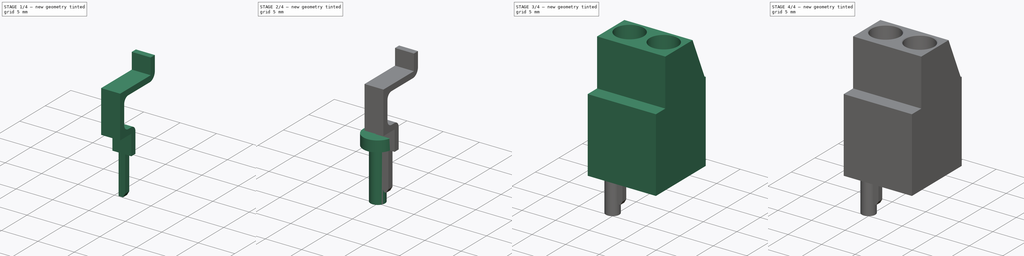
[diagram: build sequence overview — one tinted view per stage of 4, left to right]
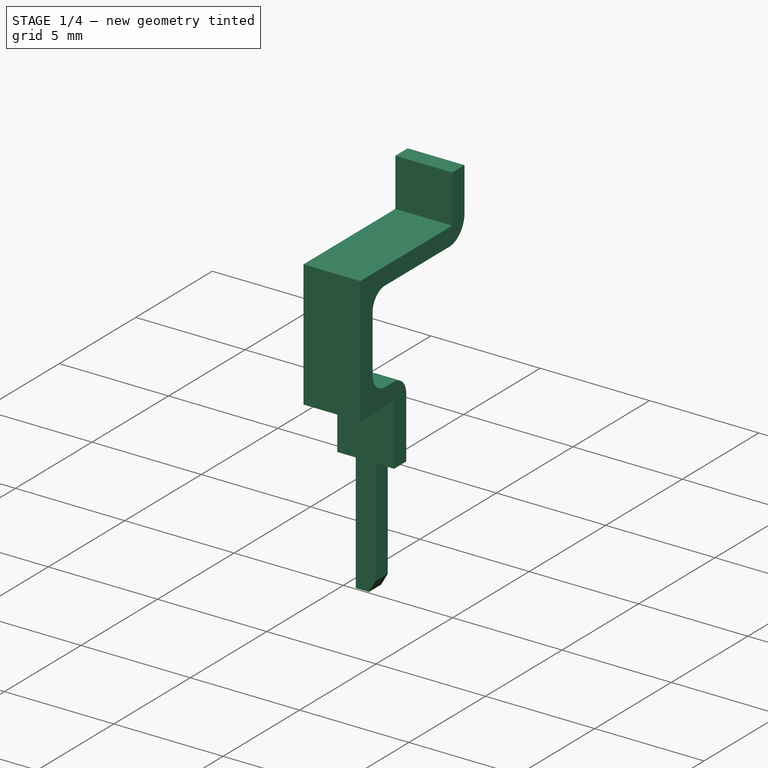
[diagram: stage 1 of 4 — iso view after this stage's code; geometry added in this stage tinted green]
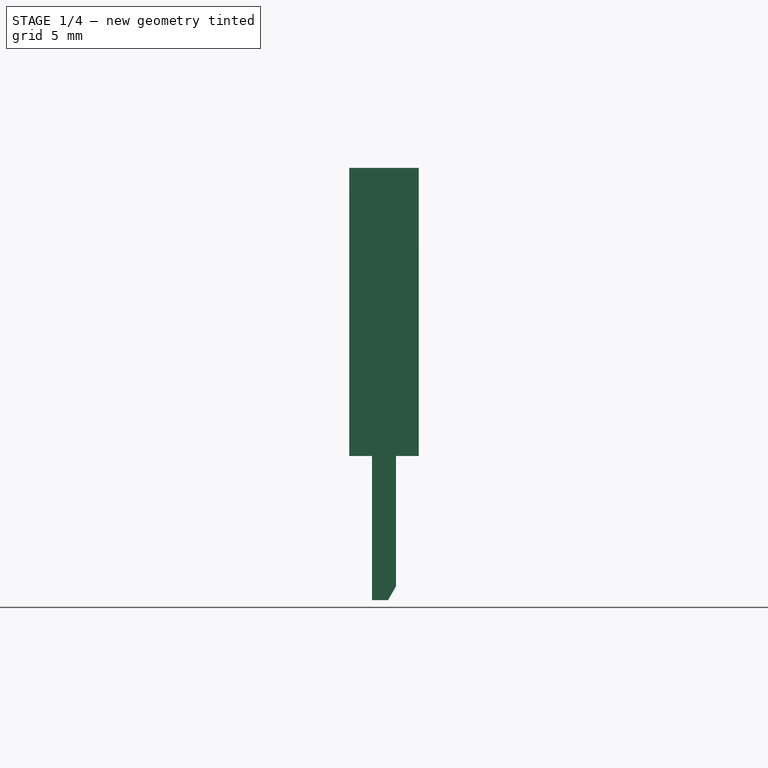
[diagram: stage 1 of 4 — front view after this stage's code; geometry added in this stage tinted green]
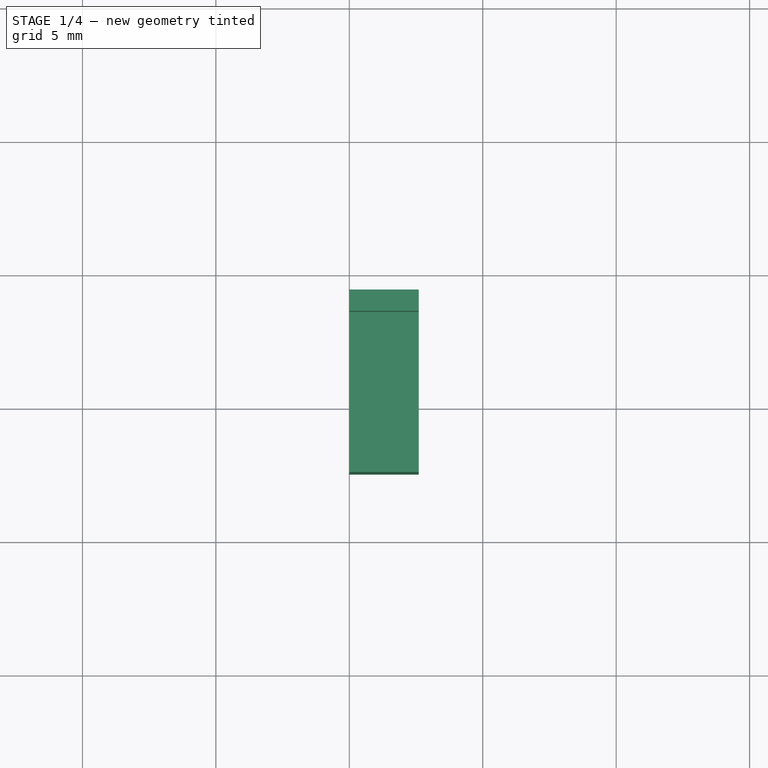
[diagram: stage 1 of 4 — top view after this stage's code; geometry added in this stage tinted green]
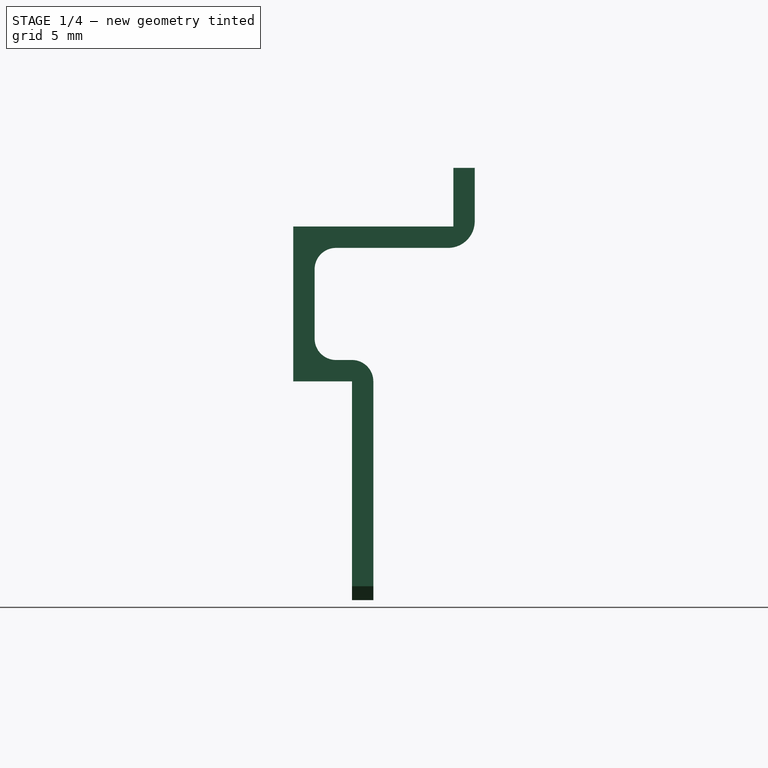
[diagram: stage 1 of 4 — right view after this stage's code; geometry added in this stage tinted green]
FCSTD DOCUMENT  (FreeCAD 0.19R21125 (Git))
Label: RND_TERMINAL_BLOCK_205-00287
License: All rights reserved
LicenseURL: http://en.wikipedia.org/wiki/All_rights_reserved
objects: Sketcher::SketchObject×8, PartDesign::Pad×4, PartDesign::Pocket×4, PartDesign::Chamfer×4, PartDesign::Body×3, App::Link×2, PartDesign::Fillet×1
note: 37 computed .brp shape members not serialized (recipe doc carries the construction recipe); baked Part::Feature solids carry a one-line shape summary decoded from their .brp

FEATURE [PartDesign::Body] Body001  label="Screw"
  Group = -> [Sketch003,Pad001,Sketch004,Pad002,Sketch005,Fillet,Pocket002]
  Origin = -> Origin001
  Placement = pos=(2.54,0,16) rot=(0,0,1;0.610865rad)
  Tip = -> Pocket002
FEATURE [App::Link] Link  label="Screw001"
  LinkPlacement = pos=(7.62,0,16) rot=(0,0,1;0.610865rad)
  LinkedObject = -> Body001
  Placement = pos=(7.62,0,16) rot=(0,0,1;0.610865rad)
FEATURE [Sketcher::SketchObject] Sketch006
  MapMode = 5
  Placement = pos=(0,0,0) rot=(0.57735,0.57735,0.57735;2.0944rad)
  Support = -> [YZ_Plane002]
  sketch-geometry (16):
    g0: LineSegment StartX=-0.4 StartY=-5.4 StartZ=0 EndX=-0.4 EndY=2.8 EndZ=0
    g1: LineSegment StartX=-0.4 StartY=2.8 StartZ=0 EndX=-2.6 EndY=2.8 EndZ=0
    g2: LineSegment StartX=-2.6 StartY=2.8 StartZ=0 EndX=-2.6 EndY=8.6 EndZ=0
    g3: LineSegment StartX=-2.6 StartY=8.6 StartZ=0 EndX=3.4 EndY=8.6 EndZ=0
    g4: LineSegment StartX=3.4 StartY=8.6 StartZ=0 EndX=3.4 EndY=10.8 EndZ=0
    g5: LineSegment StartX=3.4 StartY=10.8 StartZ=0 EndX=4.2 EndY=10.8 EndZ=0
    g6: LineSegment StartX=4.2 StartY=10.8 StartZ=0 EndX=4.2 EndY=8.8 EndZ=0
    g7: LineSegment StartX=3.2 StartY=7.8 StartZ=0 EndX=-1 EndY=7.8 EndZ=0
    g8: LineSegment StartX=-1.8 StartY=7 StartZ=0 EndX=-1.8 EndY=4.4 EndZ=0
    g9: LineSegment StartX=-1 StartY=3.6 StartZ=0 EndX=-0.4 EndY=3.6 EndZ=0
    g10: LineSegment StartX=0.4 StartY=2.8 StartZ=0 EndX=0.4 EndY=-5.4 EndZ=0
    g11: LineSegment StartX=0.4 StartY=-5.4 StartZ=0 EndX=-0.4 EndY=-5.4 EndZ=0
    g12: ArcOfCircle CenterX=3.2 CenterY=8.8 CenterZ=0 NormalX=0 NormalY=0 NormalZ=1 AngleXU=0 Radius=1 StartAngle=4.71239 EndAngle=6.28319
    g13: ArcOfCircle CenterX=-0.4 CenterY=2.8 CenterZ=0 NormalX=0 NormalY=0 NormalZ=1 AngleXU=0 Radius=0.8 StartAngle=0 EndAngle=1.5708
    g14: ArcOfCircle CenterX=-1 CenterY=7 CenterZ=0 NormalX=0 NormalY=0 NormalZ=1 AngleXU=0 Radius=0.8 StartAngle=1.5708 EndAngle=3.14159
    g15: ArcOfCircle CenterX=-1 CenterY=4.4 CenterZ=0 NormalX=0 NormalY=0 NormalZ=1 AngleXU=0 Radius=0.8 StartAngle=3.14159 EndAngle=4.71239
  constraints (43):
    c: Vertical(g0)
    c: Coincident(g0,g1)
    c: Horizontal(g1)
    c: Coincident(g1,g2)
    c: Vertical(g2)
    c: Coincident(g2,g3)
    c: Horizontal(g3)
    c: Coincident(g3,g4)
    c: Vertical(g4)
    c: Coincident(g4,g5)
    c: Horizontal(g5)
    c: Coincident(g5,g6)
    c: Vertical(g6)
    c: Horizontal(g7)
    c: Vertical(g8)
    c: Horizontal(g9)
    c: Vertical(g10)
    c: Coincident(g10,g11)
    c: Coincident(g0,g11)
    c: DistanceX(g11,g11) = 0.8
    c: DistanceX(g5,g5) = 0.8
    c: DistanceX(g3,g3) = 6
    c: DistanceY(g10,g-1) = 5.4
    c: Symmetric(g0,g10,g-2)
    c: Tangent(g6,g12) = 1.5708
    c: Tangent(g7,g12) = 1.5708
    c: Radius(g12) = 1
    c: Tangent(g9,g13) = 1.5708
    c: Tangent(g10,g13) = 1.5708
    c: Tangent(g7,g14) = -1.5708
    c: Tangent(g8,g14) = -1.5708
    c: Tangent(g8,g15) = -1.5708
    c: Tangent(g9,g15) = -1.5708
    c: Radius(g14) = 0.8
    c: Radius(g15) = 0.8
    c: DistanceY(g0,g9) = 0.8
    c: DistanceY(g7,g3) = 0.8
    c: DistanceX(g2,g8) = 0.8
    c: Radius(g13) = 0.8
    c: DistanceY(g10,g9) = 9
    c: DistanceX(g1,g10) = 3
    c: DistanceY(g1,g2) = 5.8
    c: DistanceY(g7,g5) = 3
FEATURE [PartDesign::Pad] Pad003
  Length = 2.6
  Length2 = 100
  Placement = pos=(0,0,0) rot=(0.57735,0.57735,0.57735;2.0944rad)
  Profile = -> Sketch006
  Type = 0
FEATURE [Sketcher::SketchObject] Sketch007
  MapMode = 5
  Placement = pos=(2e-16,0.4,-1e-16) rot=(0.57735,0.57735,0.57735;4.18879rad)
  Support = -> [Pad003]
  sketch-geometry (8):
    g0: LineSegment StartX=-6 StartY=2.75 StartZ=0 EndX=0 EndY=2.75 EndZ=0
    g1: LineSegment StartX=0 StartY=2.75 StartZ=0 EndX=0 EndY=1.75 EndZ=0
    g2: LineSegment StartX=0 StartY=1.75 StartZ=0 EndX=-6 EndY=1.75 EndZ=0
    g3: LineSegment StartX=-6 StartY=1.75 StartZ=0 EndX=-6 EndY=2.75 EndZ=0
    g4: LineSegment StartX=-6 StartY=0.85 StartZ=0 EndX=0 EndY=0.85 EndZ=0
    g5: LineSegment StartX=0 StartY=0.85 StartZ=0 EndX=0 EndY=-0.15 EndZ=0
    g6: LineSegment StartX=0 StartY=-0.15 StartZ=0 EndX=-6 EndY=-0.15 EndZ=0
    g7: LineSegment StartX=-6 StartY=-0.15 StartZ=0 EndX=-6 EndY=0.85 EndZ=0
  constraints (24):
    c: Coincident(g0,g1)
    c: Coincident(g1,g2)
    c: Coincident(g2,g3)
    c: Coincident(g3,g0)
    c: Horizontal(g0)
    c: Horizontal(g2)
    c: Vertical(g1)
    c: Vertical(g3)
    c: PointOnObject(g1,g-2)
    c: Coincident(g4,g5)
    c: Coincident(g5,g6)
    c: Coincident(g6,g7)
    c: Coincident(g7,g4)
    c: Horizontal(g4)
    c: Horizontal(g6)
    c: Vertical(g5)
    c: Vertical(g7)
    c: PointOnObject(g5,g-2)
    c: DistanceY(g-1,g4) = 0.85
    c: DistanceY(g4,g1) = 0.9
    c: DistanceY(g1,g1) = 1
    c: DistanceY(g5,g5) = 1
    c: DistanceX(g0,g0) = 6
    c: DistanceX(g6,g6) = 6
FEATURE [PartDesign::Pocket] Pocket003
  BaseFeature = -> Pad003
  Length = 5
  Length2 = 100
  Placement = pos=(0,0,0) rot=(0.57735,0.57735,0.57735;2.0944rad)
  Profile = -> Sketch007
  Type = 0
FEATURE [PartDesign::Chamfer] Chamfer002
  Angle = 60
  Base = -> Pocket003 [Edge29]
  BaseFeature = -> Pocket003
  Placement = pos=(0,0,0) rot=(0.57735,0.57735,0.57735;2.0944rad)
  Size = 0.3
  SupportTransform = true
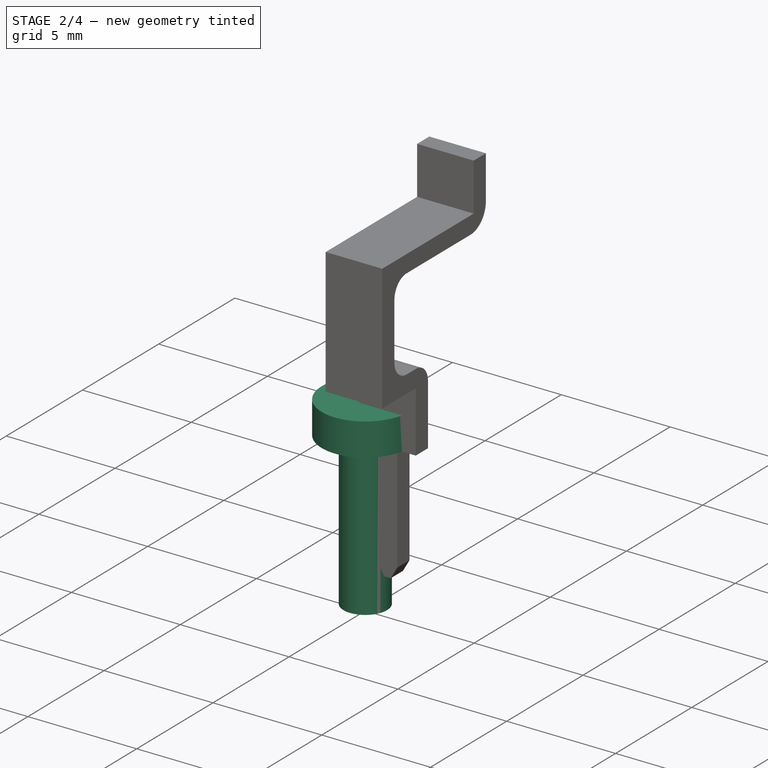
[diagram: stage 2 of 4 — iso view after this stage's code; geometry added in this stage tinted green]
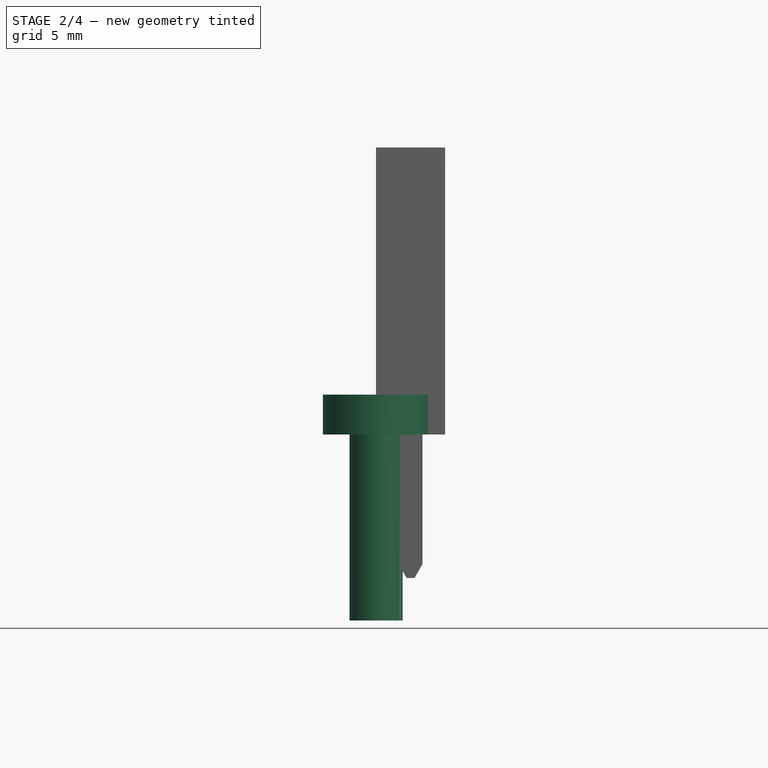
[diagram: stage 2 of 4 — front view after this stage's code; geometry added in this stage tinted green]
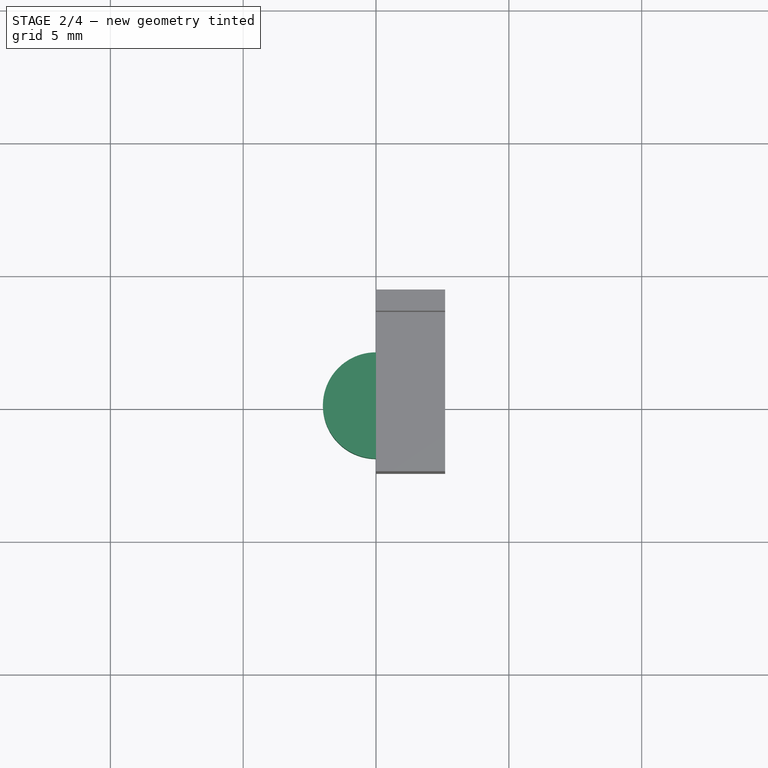
[diagram: stage 2 of 4 — top view after this stage's code; geometry added in this stage tinted green]
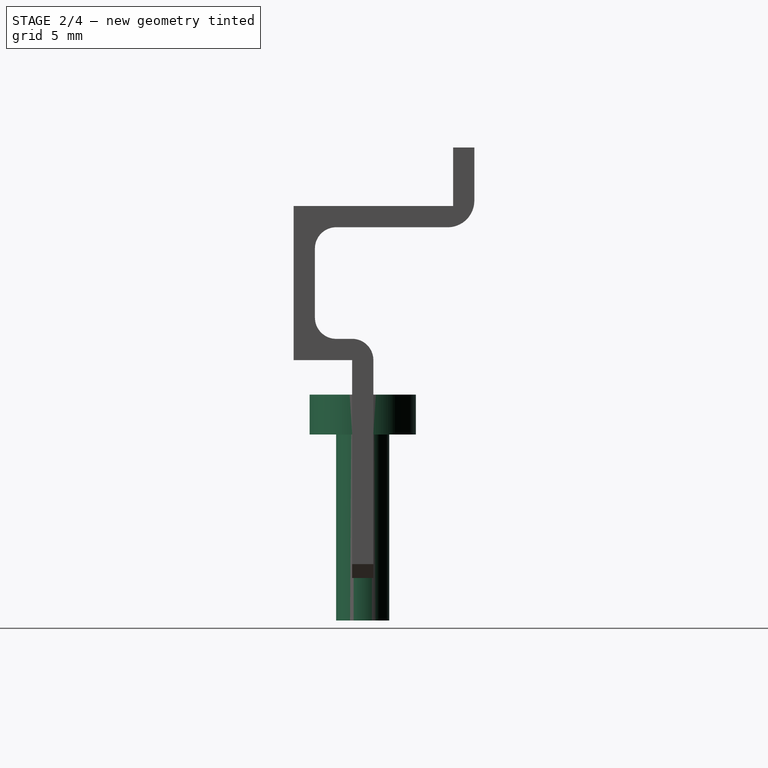
[diagram: stage 2 of 4 — right view after this stage's code; geometry added in this stage tinted green]
FEATURE [PartDesign::Body] Body  label="Gehaeuse"
  Group = -> [Sketch,Pad,Sketch001,Pocket,Sketch002,Pocket001,Chamfer,Chamfer001]
  Origin = -> Origin
  Tip = -> Chamfer001
FEATURE [Sketcher::SketchObject] Sketch003
  MapMode = 5
  Support = -> [XY_Plane001]
  sketch-geometry (1):
    g0: Circle CenterX=0 CenterY=0 CenterZ=0 NormalX=0 NormalY=0 NormalZ=1 AngleXU=0 Radius=2
  constraints (2):
    c: Diameter(g0) = 4
    c: Coincident(g-1,g0)
FEATURE [PartDesign::Pad] Pad001
  Length = 1.5
  Length2 = 100
  Profile = -> Sketch003
  Type = 0
FEATURE [Sketcher::SketchObject] Sketch004
  MapMode = 5
  Placement = pos=(0,0,0) rot=(1,0,0;3.14159rad)
  Support = -> [Pad001]
  sketch-geometry (1):
    g0: Circle CenterX=0 CenterY=0 CenterZ=0 NormalX=0 NormalY=0 NormalZ=1 AngleXU=0 Radius=1
  constraints (2):
    c: Coincident(g0,g-1)
    c: Diameter(g0) = 2
FEATURE [PartDesign::Pad] Pad002
  BaseFeature = -> Pad001
  Length = 7
  Length2 = 100
  Profile = -> Sketch004
  Type = 0
FEATURE [PartDesign::Chamfer] Chamfer003
  Angle = 60
  Base = -> Chamfer002 [Edge12]
  BaseFeature = -> Chamfer002
  Placement = pos=(0,0,0) rot=(0.57735,0.57735,0.57735;2.0944rad)
  Size = 0.3
  SupportTransform = true
FEATURE [PartDesign::Body] Body002  label="Pin"
  Group = -> [Sketch006,Pad003,Sketch007,Pocket003,Chamfer002,Chamfer003]
  Origin = -> Origin002
  Placement = pos=(1.24,0,0) rot=(0,0,1;0rad)
  Tip = -> Chamfer003
FEATURE [App::Link] Link001  label="Pin001"
  LinkPlacement = pos=(6.32,0,0) rot=(0,0,1;0rad)
  LinkedObject = -> Body002
  Placement = pos=(6.32,0,0) rot=(0,0,1;0rad)
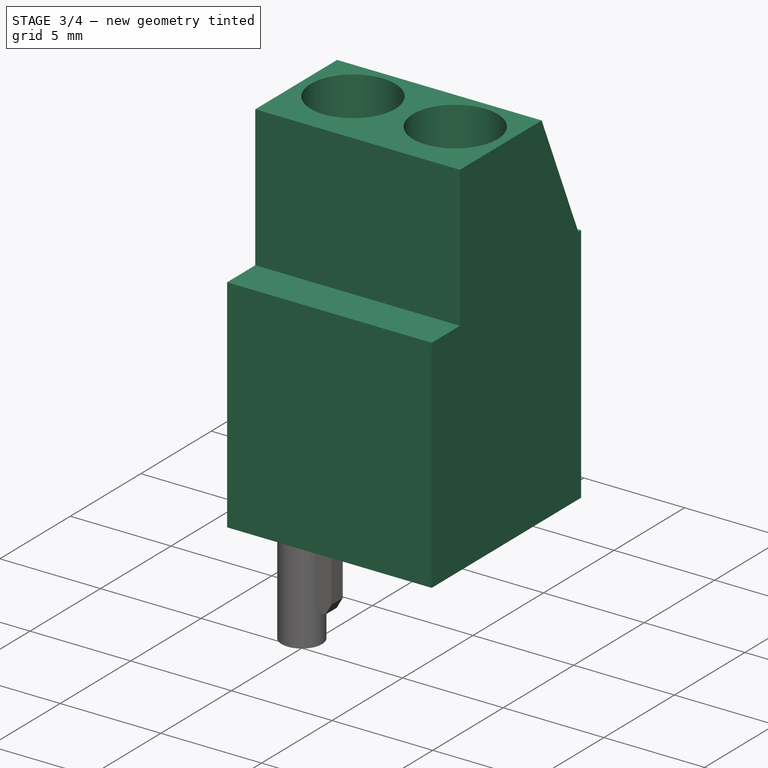
[diagram: stage 3 of 4 — iso view after this stage's code; geometry added in this stage tinted green]
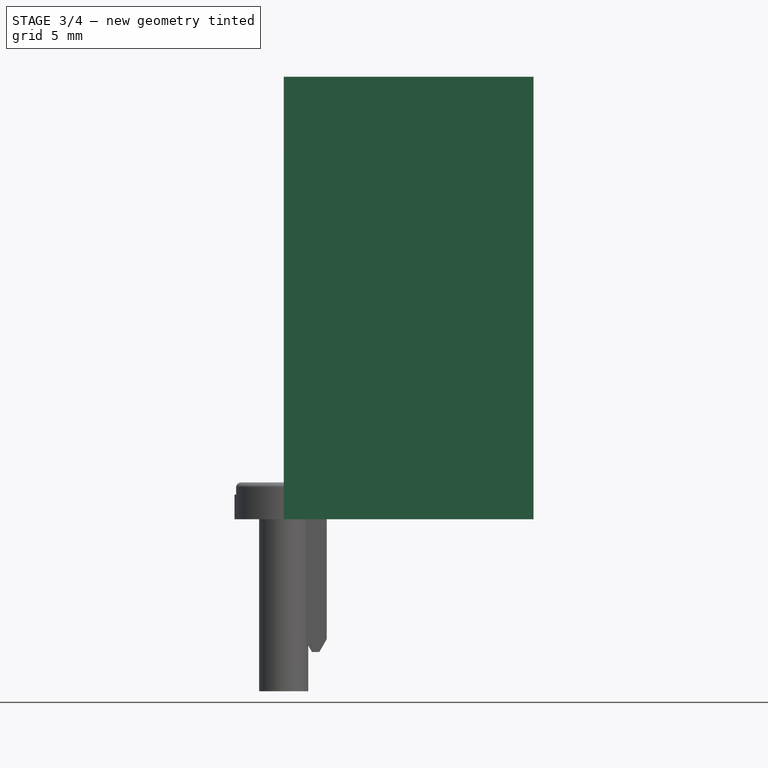
[diagram: stage 3 of 4 — front view after this stage's code; geometry added in this stage tinted green]
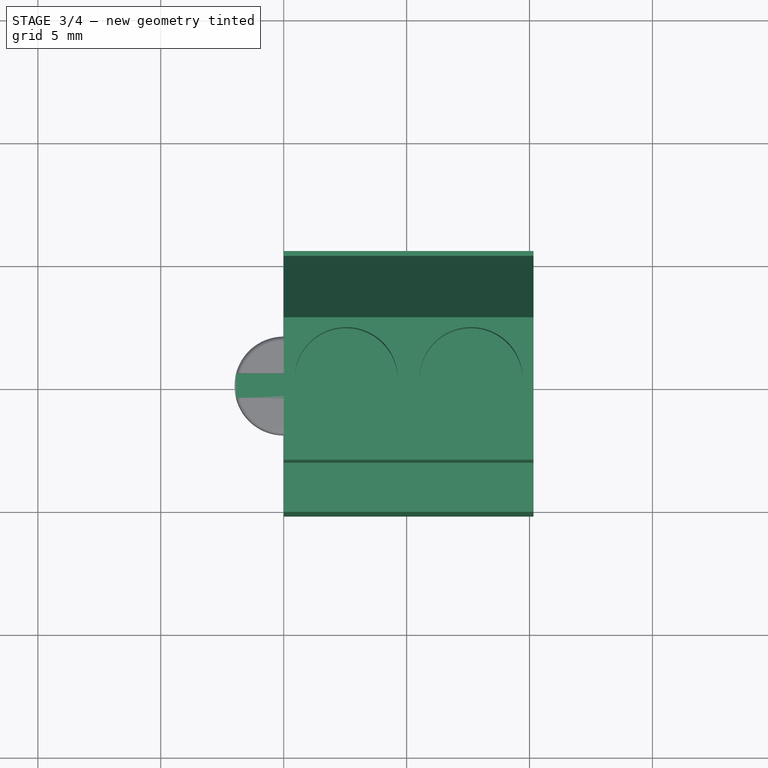
[diagram: stage 3 of 4 — top view after this stage's code; geometry added in this stage tinted green]
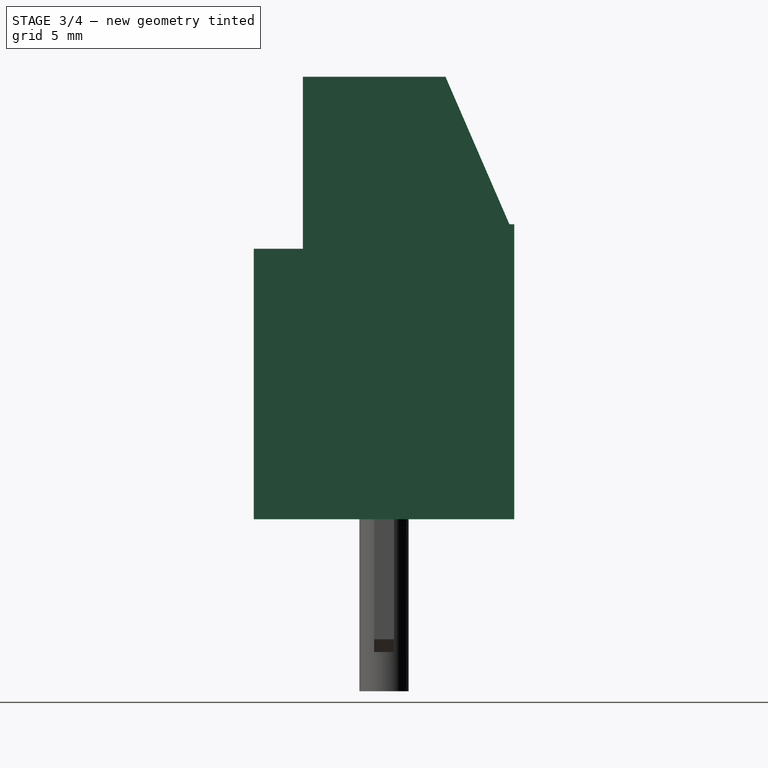
[diagram: stage 3 of 4 — right view after this stage's code; geometry added in this stage tinted green]
FEATURE [Sketcher::SketchObject] Sketch
  MapMode = 5
  Placement = pos=(0,0,0) rot=(0.57735,0.57735,0.57735;2.0944rad)
  Support = -> [YZ_Plane]
  sketch-geometry (8):
    g0: LineSegment StartX=-5.3 StartY=0 StartZ=0 EndX=5.3 EndY=0 EndZ=0
    g1: LineSegment StartX=5.3 StartY=0 StartZ=0 EndX=5.3 EndY=12 EndZ=0
    g2: LineSegment StartX=5.3 StartY=12 StartZ=0 EndX=5.1 EndY=12 EndZ=0
    g3: LineSegment StartX=5.1 StartY=12 StartZ=0 EndX=2.5 EndY=18 EndZ=0
    g4: LineSegment StartX=2.5 StartY=18 StartZ=0 EndX=-3.3 EndY=18 EndZ=0
    g5: LineSegment StartX=-3.3 StartY=18 StartZ=0 EndX=-3.3 EndY=11 EndZ=0
    g6: LineSegment StartX=-3.3 StartY=11 StartZ=0 EndX=-5.3 EndY=11 EndZ=0
    g7: LineSegment StartX=-5.3 StartY=11 StartZ=0 EndX=-5.3 EndY=0 EndZ=0
  constraints (23):
    c: Coincident(g0,g1)
    c: Vertical(g1)
    c: Coincident(g1,g2)
    c: Horizontal(g2)
    c: Coincident(g2,g3)
    c: Horizontal(g4)
    c: Coincident(g4,g5)
    c: Vertical(g5)
    c: Coincident(g5,g6)
    c: Horizontal(g6)
    c: Coincident(g6,g7)
    c: Vertical(g7)
    c: Coincident(g0,g7)
    c: DistanceX(g0,g0) = 10.6
    c: DistanceY(g0,g4) = 18
    c: Coincident(g3,g4)
    c: DistanceX(g6,g6) = 2
    c: DistanceY(g1,g1) = 12
    c: DistanceX(g2,g2) = 0.2
    c: Symmetric(g0,g0,g-2)
    c: DistanceX(g6,g3) = 7.8
    c: PointOnObject(g-1,g0)
    c: DistanceY(g7,g7) = 11
FEATURE [PartDesign::Pad] Pad
  Length = 10.16
  Length2 = 100
  Placement = pos=(0,0,0) rot=(0.57735,0.57735,0.57735;2.0944rad)
  Profile = -> Sketch
  Type = 0
FEATURE [Sketcher::SketchObject] Sketch001
  MapMode = 5
  Placement = pos=(-7e-15,1e-14,18) rot=(0,0,-1;1.5708rad)
  Support = -> [Pad]
  sketch-geometry (2):
    g0: Circle CenterX=0 CenterY=2.54 CenterZ=0 NormalX=0 NormalY=0 NormalZ=1 AngleXU=0 Radius=2.1
    g1: Circle CenterX=0 CenterY=7.62 CenterZ=0 NormalX=0 NormalY=0 NormalZ=1 AngleXU=0 Radius=2.1
  constraints (6):
    c: Diameter(g0) = 4.2
    c: Diameter(g1) = 4.2
    c: PointOnObject(g1,g-2)
    c: PointOnObject(g0,g-2)
    c: DistanceY(g0,g1) = 5.08
    c: DistanceY(g-1,g0) = 2.54
FEATURE [PartDesign::Pocket] Pocket
  BaseFeature = -> Pad
  Length = 3
  Length2 = 100
  Placement = pos=(0,0,0) rot=(0.57735,0.57735,0.57735;2.0944rad)
  Profile = -> Sketch001
  Type = 0
FEATURE [Sketcher::SketchObject] Sketch005
  MapMode = 5
  Placement = pos=(0,0,1.5) rot=(0,0,1;0rad)
  Support = -> [Pad002]
  sketch-geometry (4):
    g0: LineSegment StartX=-2.25 StartY=0.5 StartZ=0 EndX=2.25 EndY=0.5 EndZ=0
    g1: LineSegment StartX=2.25 StartY=0.5 StartZ=0 EndX=2.25 EndY=-0.5 EndZ=0
    g2: LineSegment StartX=2.25 StartY=-0.5 StartZ=0 EndX=-2.25 EndY=-0.5 EndZ=0
    g3: LineSegment StartX=-2.25 StartY=-0.5 StartZ=0 EndX=-2.25 EndY=0.5 EndZ=0
  constraints (10):
    c: Coincident(g0,g1)
    c: Coincident(g1,g2)
    c: Coincident(g2,g3)
    c: Coincident(g3,g0)
    c: Horizontal(g2)
    c: Vertical(g3)
    c: Symmetric(g0,g1,g-1)
    c: DistanceX(g0,g0) = 4.5
    c: DistanceY(g1,g1) = 1
    c: Symmetric(g0,g0,g-2)
FEATURE [PartDesign::Fillet] Fillet
  Base = -> Pad002 [Face3]
  BaseFeature = -> Pad002
  Radius = 0.2
  SupportTransform = true
FEATURE [PartDesign::Pocket] Pocket002
  BaseFeature = -> Fillet
  Length = 0.5
  Length2 = 100
  Profile = -> Sketch005
  Type = 0
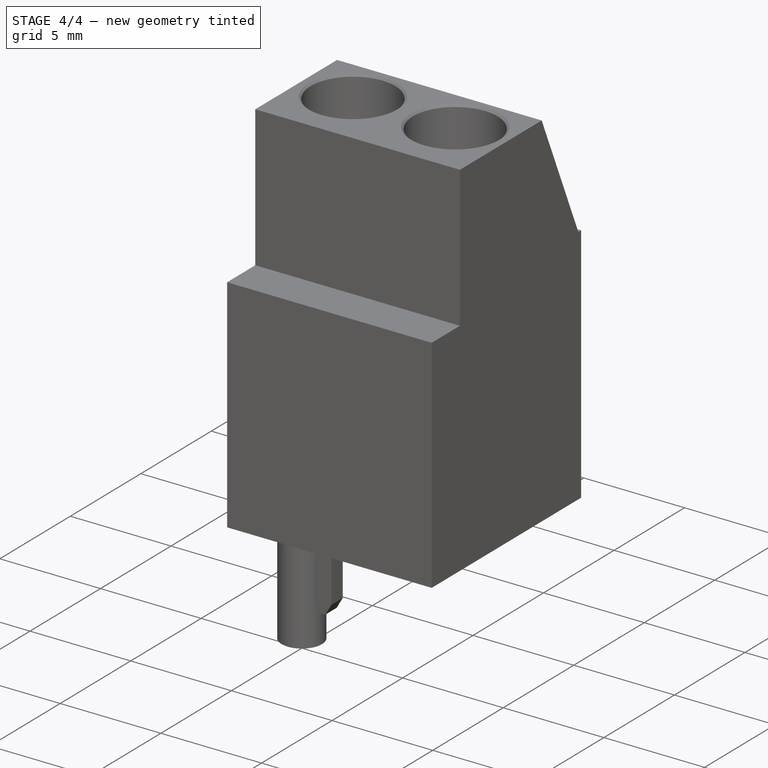
[diagram: stage 4 of 4 — iso view after this stage's code; geometry added in this stage tinted green]
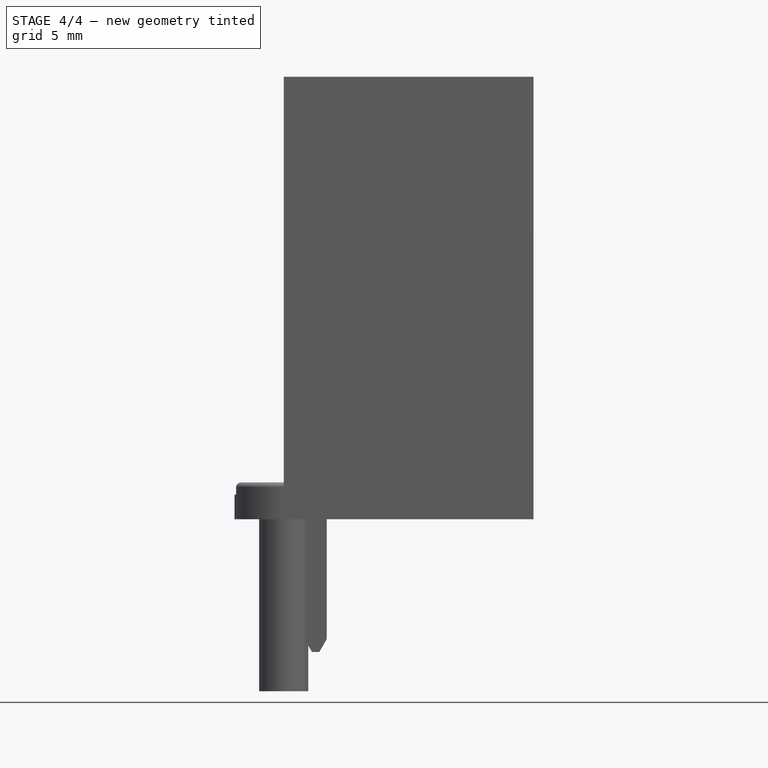
[diagram: stage 4 of 4 — front view after this stage's code; geometry added in this stage tinted green]
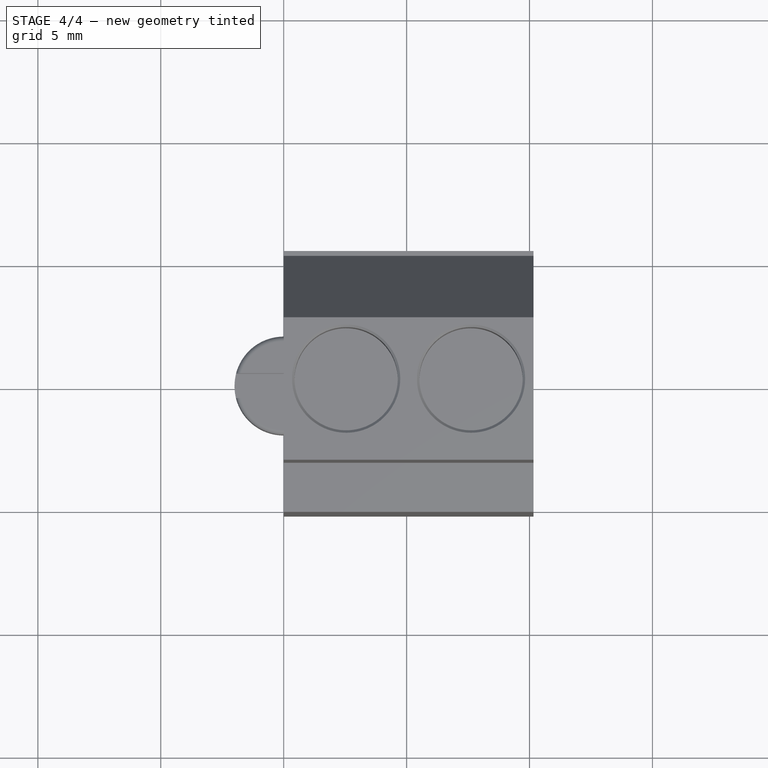
[diagram: stage 4 of 4 — top view after this stage's code; geometry added in this stage tinted green]
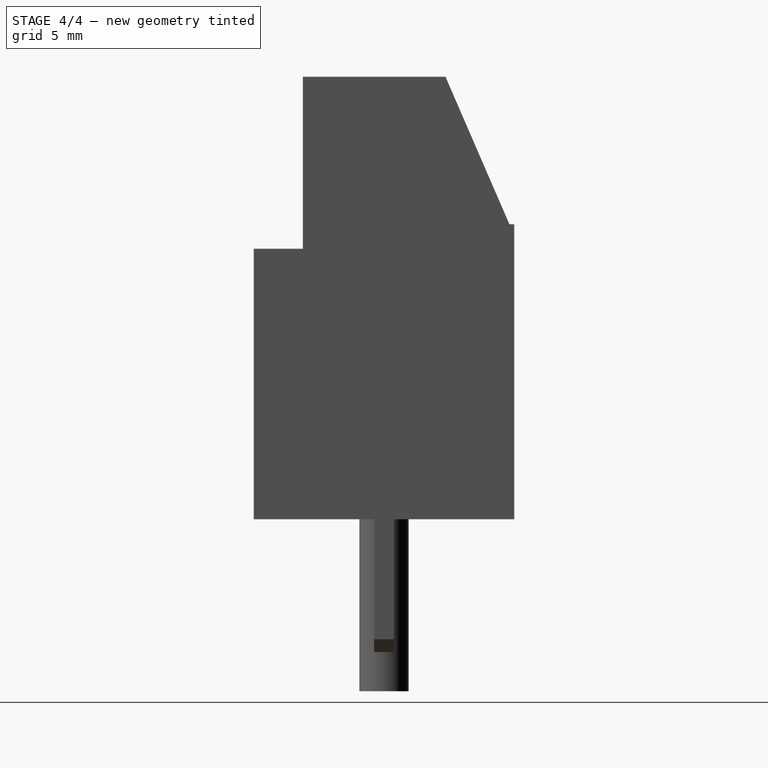
[diagram: stage 4 of 4 — right view after this stage's code; geometry added in this stage tinted green]
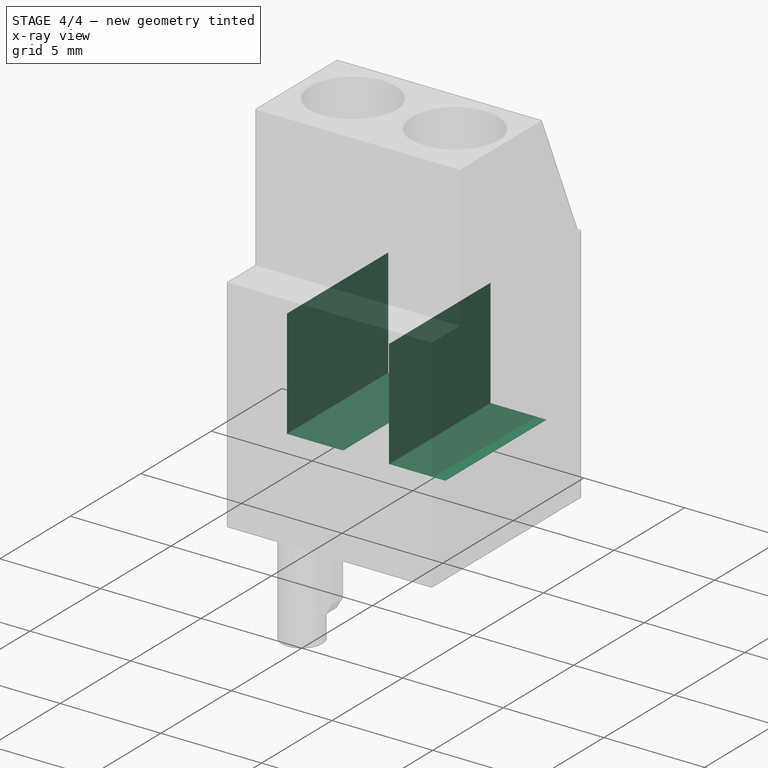
[diagram: stage 4 of 4 — x-ray composite at the iso view; earlier geometry ghosted, this stage's added geometry solid]
FEATURE [Sketcher::SketchObject] Sketch002
  MapMode = 5
  Placement = pos=(2.4e-15,5.3,-3.5e-15) rot=(0.57735,0.57735,0.57735;4.18879rad)
  Support = -> [Pocket]
  sketch-geometry (8):
    g0: LineSegment StartX=8.9 StartY=9.02 StartZ=0 EndX=3.5 EndY=9.02 EndZ=0
    g1: LineSegment StartX=3.5 StartY=9.02 StartZ=0 EndX=3.5 EndY=6.22 EndZ=0
    g2: LineSegment StartX=3.5 StartY=6.22 StartZ=0 EndX=8.9 EndY=6.22 EndZ=0
    g3: LineSegment StartX=8.9 StartY=6.22 StartZ=0 EndX=8.9 EndY=9.02 EndZ=0
    g4: LineSegment StartX=8.9 StartY=3.94 StartZ=0 EndX=3.5 EndY=3.94 EndZ=0
    g5: LineSegment StartX=3.5 StartY=3.94 StartZ=0 EndX=3.5 EndY=1.14 EndZ=0
    g6: LineSegment StartX=3.5 StartY=1.14 StartZ=0 EndX=8.9 EndY=1.14 EndZ=0
    g7: LineSegment StartX=8.9 StartY=1.14 StartZ=0 EndX=8.9 EndY=3.94 EndZ=0
  constraints (24):
    c: Coincident(g0,g1)
    c: Coincident(g1,g2)
    c: Coincident(g2,g3)
    c: Coincident(g3,g0)
    c: Horizontal(g0)
    c: Horizontal(g2)
    c: Vertical(g1)
    c: Vertical(g3)
    c: Coincident(g4,g5)
    c: Coincident(g5,g6)
    c: Coincident(g6,g7)
    c: Coincident(g7,g4)
    c: Horizontal(g4)
    c: Horizontal(g6)
    c: Vertical(g5)
    c: Vertical(g7)
    c: Equal(g3,g7)
    c: Equal(g6,g2)
    c: DistanceY(g3,g3) = 2.8
    c: DistanceX(g0,g0) = 5.4
    c: PointOnObject(g2,g7)
    c: DistanceY(g6,g2) = 5.08
    c: DistanceX(g-1,g5) = 3.5
    c: DistanceY(g-1,g5) = 1.14
FEATURE [PartDesign::Pocket] Pocket001
  BaseFeature = -> Pocket
  Length = 8
  Length2 = 100
  Placement = pos=(0,0,0) rot=(0.57735,0.57735,0.57735;2.0944rad)
  Profile = -> Sketch002
  Type = 0
FEATURE [PartDesign::Chamfer] Chamfer
  Angle = 45
  Base = -> Pocket001 [Edge12,Edge11,Edge14,Edge13,Edge18,Edge15,Edge16,Edge17]
  BaseFeature = -> Pocket001
  Placement = pos=(0,0,0) rot=(0.57735,0.57735,0.57735;2.0944rad)
  Size = 0.8
  SupportTransform = true
FEATURE [PartDesign::Chamfer] Chamfer001
  Angle = 45
  Base = -> Chamfer [Edge56,Edge57]
  BaseFeature = -> Chamfer
  Placement = pos=(0,0,0) rot=(0.57735,0.57735,0.57735;2.0944rad)
  Size = 0.1
  SupportTransform = true
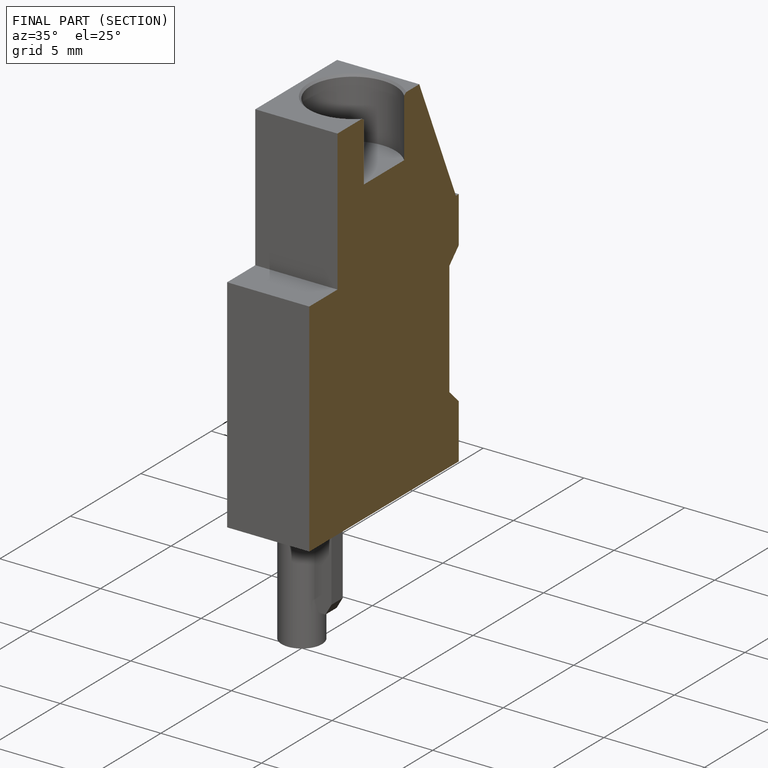
[diagram: finished part — half-section view (interior)]
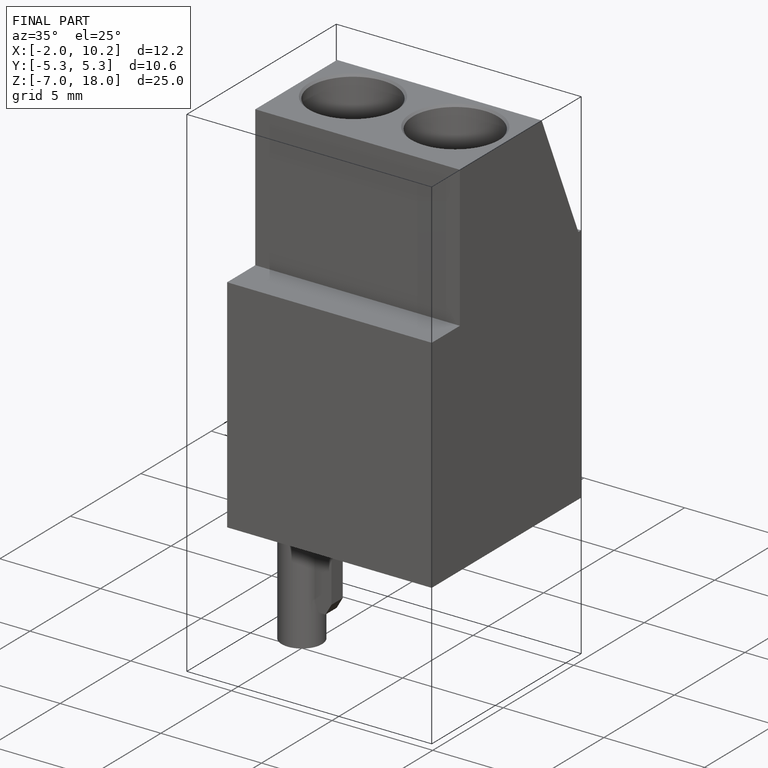
[diagram: finished part — iso view with bounding-box wireframe]
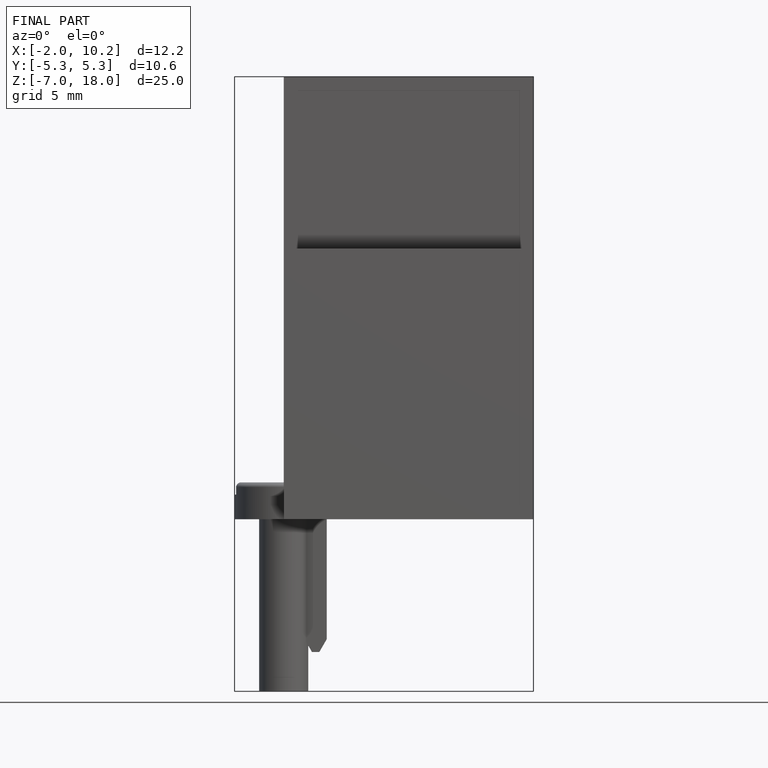
[diagram: finished part — front view with bounding-box wireframe]
